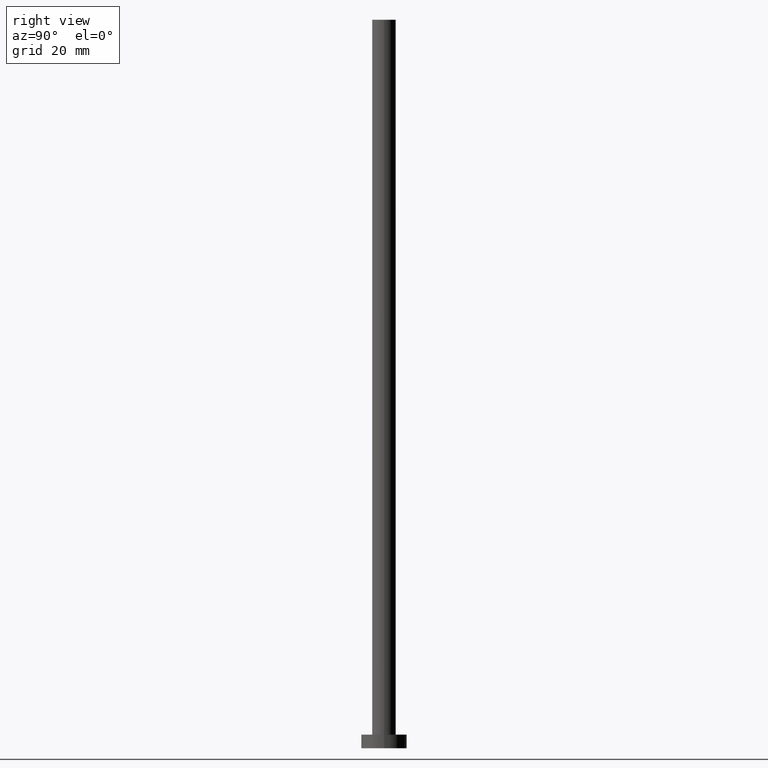
[diagram: clean part render]
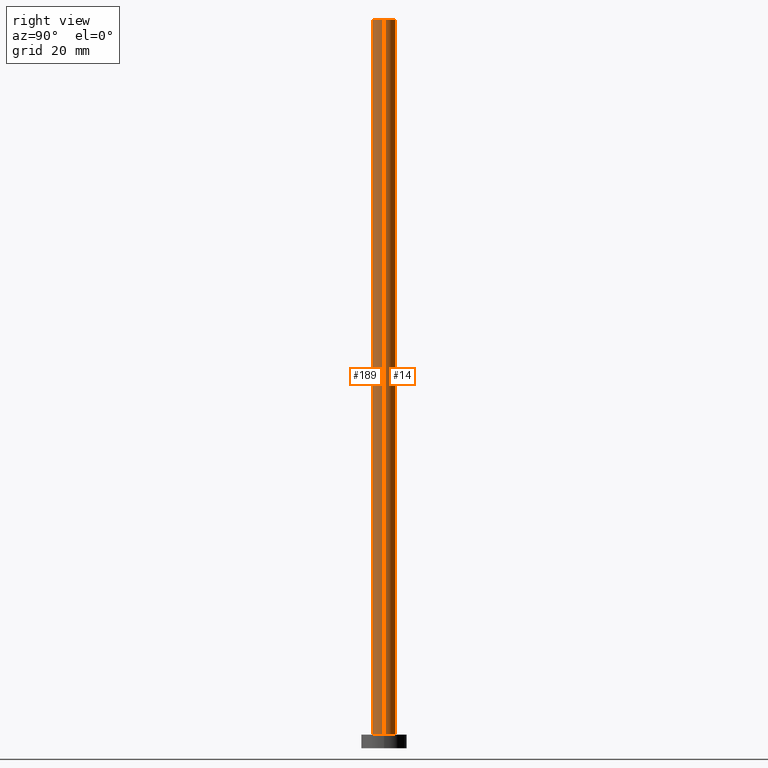
[diagram: same view with one multi-face feature highlighted, each face labeled with its STEP entity id]
A machine part, right view. The highlighted faces form ONE feature: a constant-radius fillet chain: 2 tangent blend faces with common blend radius 2.6 mm. The faces share edges in the B-rep.
Their STEP definitions:
[1] entity #14 (Cylinder):
#5 = EDGE_CURVE ( 'NONE', #149, #7, #185, .T. ) ;
#7 = VERTEX_POINT ( 'NONE', #178 ) ;
#10 = AXIS2_PLACEMENT_3D ( 'NONE', #57, #176, #133 ) ;
#14 = ADVANCED_FACE ( 'NONE', ( #51 ), #213, .T. ) ;
#18 = DIRECTION ( 'NONE',  ( 0.000000000000000000, 0.000000000000000000, 1.000000000000000000 ) ) ;
#31 = ORIENTED_EDGE ( 'NONE', *, *, #227, .T. ) ;
#36 = LINE ( 'NONE', #134, #83 ) ;
#44 = LINE ( 'NONE', #128, #196 ) ;
#46 = DIRECTION ( 'NONE',  ( -0.000000000000000000, -0.000000000000000000, -1.000000000000000000 ) ) ;
#51 = FACE_OUTER_BOUND ( 'NONE', #170, .T. ) ;
#57 = CARTESIAN_POINT ( 'NONE',  ( 0.000000000000000000, 0.000000000000000000, 160.0000000000000000 ) ) ;
#64 = VERTEX_POINT ( 'NONE', #72 ) ;
#66 = ORIENTED_EDGE ( 'NONE', *, *, #100, .T. ) ;
#70 = AXIS2_PLACEMENT_3D ( 'NONE', #115, #18, #94 ) ;
#72 = CARTESIAN_POINT ( 'NONE',  ( -2.600000000000000089, 0.000000000000000000, 3.000000000000000000 ) ) ;
#83 = VECTOR ( 'NONE', #156, 1000.000000000000000 ) ;
#94 = DIRECTION ( 'NONE',  ( 1.000000000000000000, 0.000000000000000000, 0.000000000000000000 ) ) ;
#99 = DIRECTION ( 'NONE',  ( 0.000000000000000000, 0.000000000000000000, 1.000000000000000000 ) ) ;
#100 = EDGE_CURVE ( 'NONE', #149, #242, #36, .T. ) ;
#109 = ORIENTED_EDGE ( 'NONE', *, *, #177, .F. ) ;
#113 = CARTESIAN_POINT ( 'NONE',  ( 0.000000000000000000, 0.000000000000000000, 160.0000000000000000 ) ) ;
#115 = CARTESIAN_POINT ( 'NONE',  ( 0.000000000000000000, 0.000000000000000000, 3.000000000000000000 ) ) ;
#121 = DIRECTION ( 'NONE',  ( 1.000000000000000000, 0.000000000000000000, 0.000000000000000000 ) ) ;
#128 = CARTESIAN_POINT ( 'NONE',  ( -2.600000000000000089, 0.000000000000000000, 160.0000000000000000 ) ) ;
#133 = DIRECTION ( 'NONE',  ( -1.000000000000000000, 0.000000000000000000, 0.000000000000000000 ) ) ;
#134 = CARTESIAN_POINT ( 'NONE',  ( 2.600000000000000089, 3.184081677783118191E-16, 160.0000000000000000 ) ) ;
#149 = VERTEX_POINT ( 'NONE', #208 ) ;
#156 = DIRECTION ( 'NONE',  ( -0.000000000000000000, -0.000000000000000000, -1.000000000000000000 ) ) ;
#167 = ORIENTED_EDGE ( 'NONE', *, *, #5, .F. ) ;
#170 = EDGE_LOOP ( 'NONE', ( #167, #66, #31, #109 ) ) ;
#176 = DIRECTION ( 'NONE',  ( -0.000000000000000000, -0.000000000000000000, -1.000000000000000000 ) ) ;
#177 = EDGE_CURVE ( 'NONE', #7, #64, #44, .T. ) ;
#178 = CARTESIAN_POINT ( 'NONE',  ( -2.600000000000000089, 0.000000000000000000, 160.0000000000000000 ) ) ;
#185 = CIRCLE ( 'NONE', #193, 2.600000000000000089 ) ;
#190 = CIRCLE ( 'NONE', #70, 2.600000000000000089 ) ;
#193 = AXIS2_PLACEMENT_3D ( 'NONE', #113, #99, #121 ) ;
#196 = VECTOR ( 'NONE', #46, 1000.000000000000000 ) ;
#208 = CARTESIAN_POINT ( 'NONE',  ( 2.600000000000000089, 3.184081677783118191E-16, 160.0000000000000000 ) ) ;
#213 = CYLINDRICAL_SURFACE ( 'NONE', #10, 2.600000000000000089 ) ;
#227 = EDGE_CURVE ( 'NONE', #242, #64, #190, .T. ) ;
#242 = VERTEX_POINT ( 'NONE', #252 ) ;
#252 = CARTESIAN_POINT ( 'NONE',  ( 2.600000000000000089, 3.184081677783118191E-16, 3.000000000000000000 ) ) ;
[2] entity #189 (Cylinder):
#7 = VERTEX_POINT ( 'NONE', #178 ) ;
#9 = EDGE_CURVE ( 'NONE', #7, #149, #21, .T. ) ;
#16 = CARTESIAN_POINT ( 'NONE',  ( 0.000000000000000000, 0.000000000000000000, 160.0000000000000000 ) ) ;
#17 = DIRECTION ( 'NONE',  ( 0.000000000000000000, 0.000000000000000000, 1.000000000000000000 ) ) ;
#21 = CIRCLE ( 'NONE', #248, 2.600000000000000089 ) ;
#28 = EDGE_LOOP ( 'NONE', ( #187, #50, #29, #186 ) ) ;
#29 = ORIENTED_EDGE ( 'NONE', *, *, #177, .T. ) ;
#36 = LINE ( 'NONE', #134, #83 ) ;
#37 = DIRECTION ( 'NONE',  ( -0.000000000000000000, -0.000000000000000000, -1.000000000000000000 ) ) ;
#44 = LINE ( 'NONE', #128, #196 ) ;
#46 = DIRECTION ( 'NONE',  ( -0.000000000000000000, -0.000000000000000000, -1.000000000000000000 ) ) ;
#49 = CIRCLE ( 'NONE', #200, 2.600000000000000089 ) ;
#50 = ORIENTED_EDGE ( 'NONE', *, *, #9, .F. ) ;
#53 = FACE_OUTER_BOUND ( 'NONE', #28, .T. ) ;
#54 = CARTESIAN_POINT ( 'NONE',  ( 0.000000000000000000, 0.000000000000000000, 3.000000000000000000 ) ) ;
#64 = VERTEX_POINT ( 'NONE', #72 ) ;
#72 = CARTESIAN_POINT ( 'NONE',  ( -2.600000000000000089, 0.000000000000000000, 3.000000000000000000 ) ) ;
#75 = DIRECTION ( 'NONE',  ( -1.000000000000000000, 0.000000000000000000, 0.000000000000000000 ) ) ;
#83 = VECTOR ( 'NONE', #156, 1000.000000000000000 ) ;
#84 = EDGE_CURVE ( 'NONE', #64, #242, #49, .T. ) ;
#93 = DIRECTION ( 'NONE',  ( 1.000000000000000000, 0.000000000000000000, 0.000000000000000000 ) ) ;
#96 = DIRECTION ( 'NONE',  ( 1.000000000000000000, 0.000000000000000000, 0.000000000000000000 ) ) ;
#100 = EDGE_CURVE ( 'NONE', #149, #242, #36, .T. ) ;
#112 = CYLINDRICAL_SURFACE ( 'NONE', #161, 2.600000000000000089 ) ;
#128 = CARTESIAN_POINT ( 'NONE',  ( -2.600000000000000089, 0.000000000000000000, 160.0000000000000000 ) ) ;
#134 = CARTESIAN_POINT ( 'NONE',  ( 2.600000000000000089, 3.184081677783118191E-16, 160.0000000000000000 ) ) ;
#149 = VERTEX_POINT ( 'NONE', #208 ) ;
#153 = CARTESIAN_POINT ( 'NONE',  ( 0.000000000000000000, 0.000000000000000000, 160.0000000000000000 ) ) ;
#156 = DIRECTION ( 'NONE',  ( -0.000000000000000000, -0.000000000000000000, -1.000000000000000000 ) ) ;
#161 = AXIS2_PLACEMENT_3D ( 'NONE', #16, #37, #75 ) ;
#177 = EDGE_CURVE ( 'NONE', #7, #64, #44, .T. ) ;
#178 = CARTESIAN_POINT ( 'NONE',  ( -2.600000000000000089, 0.000000000000000000, 160.0000000000000000 ) ) ;
#186 = ORIENTED_EDGE ( 'NONE', *, *, #84, .T. ) ;
#187 = ORIENTED_EDGE ( 'NONE', *, *, #100, .F. ) ;
#189 = ADVANCED_FACE ( 'NONE', ( #53 ), #112, .T. ) ;
#196 = VECTOR ( 'NONE', #46, 1000.000000000000000 ) ;
#200 = AXIS2_PLACEMENT_3D ( 'NONE', #54, #17, #93 ) ;
#208 = CARTESIAN_POINT ( 'NONE',  ( 2.600000000000000089, 3.184081677783118191E-16, 160.0000000000000000 ) ) ;
#215 = DIRECTION ( 'NONE',  ( 0.000000000000000000, 0.000000000000000000, 1.000000000000000000 ) ) ;
#242 = VERTEX_POINT ( 'NONE', #252 ) ;
#248 = AXIS2_PLACEMENT_3D ( 'NONE', #153, #215, #96 ) ;
#252 = CARTESIAN_POINT ( 'NONE',  ( 2.600000000000000089, 3.184081677783118191E-16, 3.000000000000000000 ) ) ;